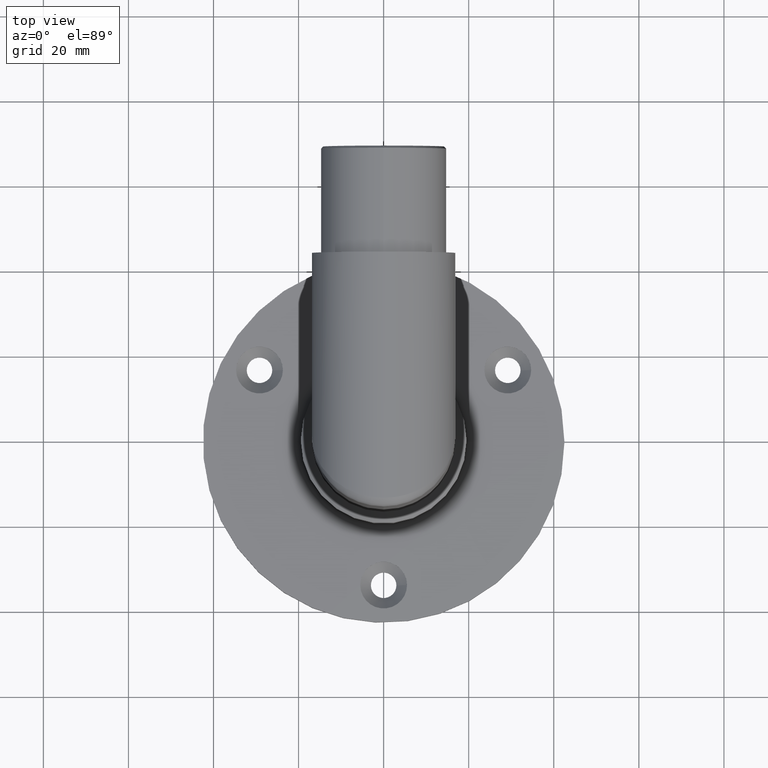
[diagram: clean part render]
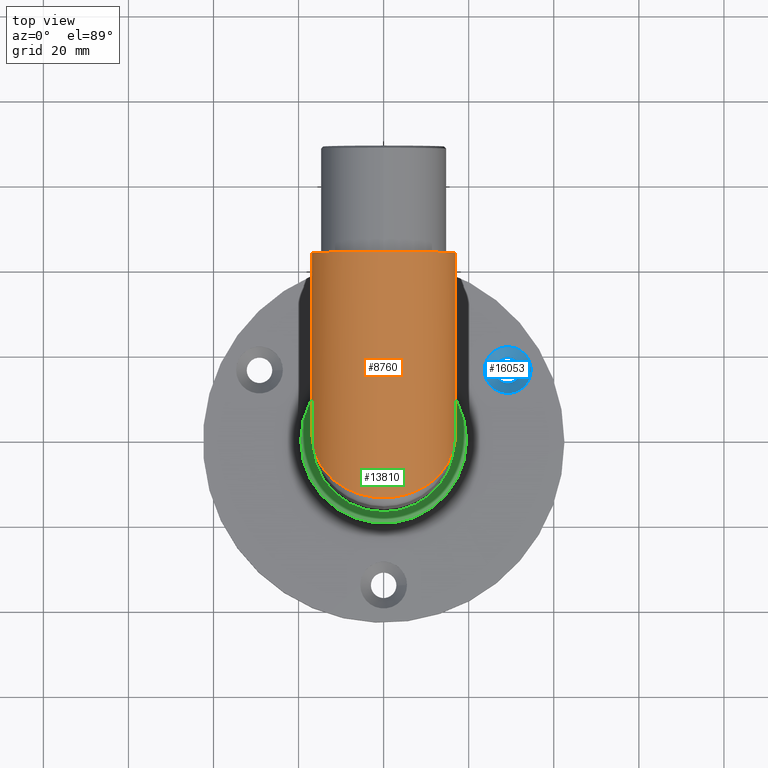
[diagram: same view with three faces highlighted in distinct colors, each labeled with its STEP entity id]
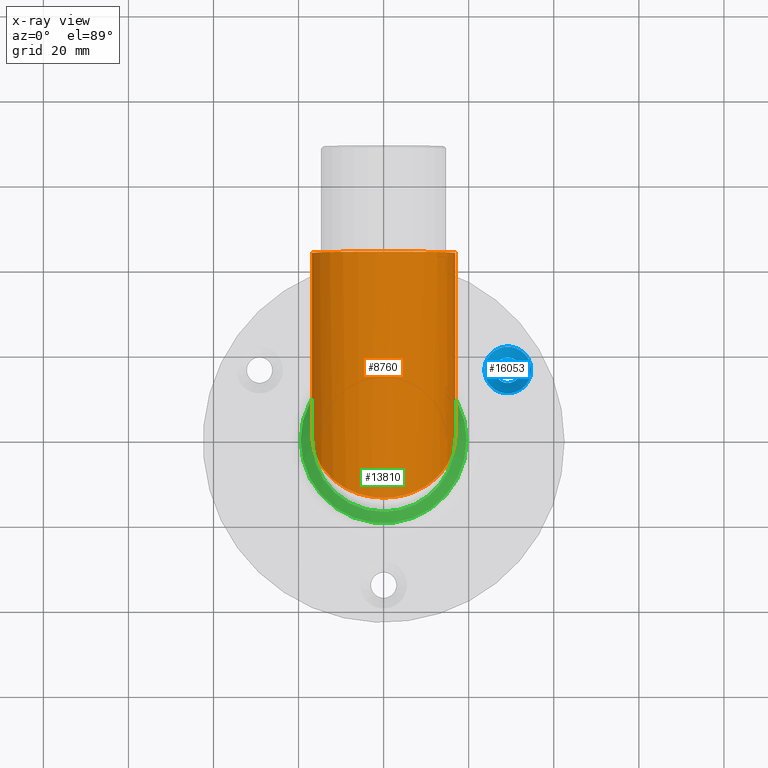
[diagram: x-ray of the same camera — body ghosted, the three highlighted faces saturated]
A machine part, top view with three faces highlighted in distinct colors.
The next image is the same camera in x-ray (body ghosted, the three faces saturated) — at least one of them is partly hidden behind the body in this view.
Their STEP definitions:

[orange] entity #8760 — the highlighted cylindrical surface (bore or boss wall) has radius 16.85 mm, axis along (0, 1, 0).
#39 = ORIENTED_EDGE ( 'NONE', *, *, #3743, .F. ) ;
#1211 = CARTESIAN_POINT ( 'NONE',  ( -16.85000000000000497, -4.252586010039184962E-15, 84.00000000000001421 ) ) ;
#1859 = AXIS2_PLACEMENT_3D ( 'NONE', #14311, #2166, #12989 ) ;
#1869 = CARTESIAN_POINT ( 'NONE',  ( -16.84999999999998721, 37.69999999999998863, 50.30000000000000426 ) ) ;
#2056 = VERTEX_POINT ( 'NONE', #13211 ) ;
#2166 = DIRECTION ( 'NONE',  ( 0.000000000000000000, 1.000000000000000000, 0.000000000000000000 ) ) ;
#2971 = ORIENTED_EDGE ( 'NONE', *, *, #6505, .T. ) ;
#3015 = FACE_OUTER_BOUND ( 'NONE', #17259, .T. ) ;
#3100 = VERTEX_POINT ( 'NONE', #1211 ) ;
#3196 = EDGE_LOOP ( 'NONE', ( #5539, #2971 ) ) ;
#3743 = EDGE_CURVE ( 'NONE', #12741, #12741, #6167, .T. ) ;
#5167 = AXIS2_PLACEMENT_3D ( 'NONE', #12464, #15082, #16713 ) ;
#5539 = ORIENTED_EDGE ( 'NONE', *, *, #12925, .T. ) ;
#6167 = CIRCLE ( 'NONE', #5167, 16.85000000000000142 ) ;
#6326 = CARTESIAN_POINT ( 'NONE',  ( 16.85000000000000142, -29.70000000000000995, 117.7000000000000171 ) ) ;
#6505 = EDGE_CURVE ( 'NONE', #3100, #2056, #12090, .T. ) ;
#7368 = CARTESIAN_POINT ( 'NONE',  ( -16.85000000000000497, -4.252586010039184962E-15, 84.00000000000001421 ) ) ;
#7703 = CARTESIAN_POINT ( 'NONE',  ( 16.85000000000000497, -8.967425371922087501E-16, 84.00000000000001421 ) ) ;
#8760 = ADVANCED_FACE ( 'NONE', ( #15032, #3015 ), #9679, .T. ) ;
#9132 = CARTESIAN_POINT ( 'NONE',  ( -16.85000000000000497, -4.252586010039184962E-15, 84.00000000000001421 ) ) ;
#9679 = CYLINDRICAL_SURFACE ( 'NONE', #1859, 16.85000000000000497 ) ;
#9821 = CARTESIAN_POINT ( 'NONE',  ( 16.85000000000000497, -8.967425371922087501E-16, 84.00000000000001421 ) ) ;
#12090 =( BOUNDED_CURVE ( )  B_SPLINE_CURVE ( 3, ( #9132, #17157, #6326, #7703 ),
 .UNSPECIFIED., .F., .F. ) 
 B_SPLINE_CURVE_WITH_KNOTS ( ( 4, 4 ),
 ( 4.712388980384689674, 7.853981633974482790 ),
 .UNSPECIFIED. ) 
 CURVE ( )  GEOMETRIC_REPRESENTATION_ITEM ( )  RATIONAL_B_SPLINE_CURVE ( ( 1.000000000000000000, 0.3333333333333333703, 0.3333333333333333703, 1.000000000000000000 ) ) 
 REPRESENTATION_ITEM ( '' )  );
#12453 = CARTESIAN_POINT ( 'NONE',  ( 16.85000000000000142, 42.99999999999998579, 84.00000000000000000 ) ) ;
#12464 = CARTESIAN_POINT ( 'NONE',  ( 0.000000000000000000, 42.99999999999998579, 84.00000000000000000 ) ) ;
#12741 = VERTEX_POINT ( 'NONE', #12453 ) ;
#12925 = EDGE_CURVE ( 'NONE', #2056, #3100, #14910, .T. ) ;
#12989 = DIRECTION ( 'NONE',  ( 0.000000000000000000, 0.000000000000000000, 1.000000000000000000 ) ) ;
#13211 = CARTESIAN_POINT ( 'NONE',  ( 16.85000000000000497, -8.967425371922087501E-16, 84.00000000000001421 ) ) ;
#14311 = CARTESIAN_POINT ( 'NONE',  ( 0.000000000000000000, -37.17000000000003013, 84.00000000000000000 ) ) ;
#14910 =( BOUNDED_CURVE ( )  B_SPLINE_CURVE ( 3, ( #9821, #16821, #1869, #7368 ),
 .UNSPECIFIED., .F., .T. ) 
 B_SPLINE_CURVE_WITH_KNOTS ( ( 4, 4 ),
 ( 1.570796326794896780, 4.712388980384689674 ),
 .UNSPECIFIED. ) 
 CURVE ( )  GEOMETRIC_REPRESENTATION_ITEM ( )  RATIONAL_B_SPLINE_CURVE ( ( 1.000000000000000000, 0.3333333333333333703, 0.3333333333333333703, 1.000000000000000000 ) ) 
 REPRESENTATION_ITEM ( '' )  );
#15032 = FACE_OUTER_BOUND ( 'NONE', #3196, .T. ) ;
#15082 = DIRECTION ( 'NONE',  ( 0.000000000000000000, 1.000000000000000000, -1.608122649676636601E-16 ) ) ;
#16713 = DIRECTION ( 'NONE',  ( 1.000000000000000000, 0.000000000000000000, 0.000000000000000000 ) ) ;
#16821 = CARTESIAN_POINT ( 'NONE',  ( 16.84999999999998721, 37.69999999999998863, 50.30000000000000426 ) ) ;
#17157 = CARTESIAN_POINT ( 'NONE',  ( -16.85000000000001208, -29.70000000000000284, 117.7000000000000171 ) ) ;
#17259 = EDGE_LOOP ( 'NONE', ( #39 ) ) ;

[blue] entity #16053 — the highlighted conical surface has half-angle 45 deg.
#338 = EDGE_LOOP ( 'NONE', ( #11140 ) ) ;
#2384 = EDGE_CURVE ( 'NONE', #12534, #12534, #12171, .T. ) ;
#4345 = CARTESIAN_POINT ( 'NONE',  ( 32.18505610753550172, 16.85000000000014353, 1.500000000000003997 ) ) ;
#5273 = CONICAL_SURFACE ( 'NONE', #7648, 5.499999999999994671, 0.7853981633974482790 ) ;
#6659 = DIRECTION ( 'NONE',  ( -0.000000000000000000, -0.000000000000000000, 1.000000000000000000 ) ) ;
#6946 = DIRECTION ( 'NONE',  ( 1.000000000000000000, 0.000000000000000000, 0.000000000000000000 ) ) ;
#7648 = AXIS2_PLACEMENT_3D ( 'NONE', #10671, #10902, #17605 ) ;
#8208 = EDGE_CURVE ( 'NONE', #16372, #16372, #14333, .T. ) ;
#8502 = CARTESIAN_POINT ( 'NONE',  ( 29.18505610753550528, 16.85000000000014353, 1.500000000000003997 ) ) ;
#8519 = DIRECTION ( 'NONE',  ( -0.000000000000000000, -0.000000000000000000, 1.000000000000000000 ) ) ;
#9906 = ORIENTED_EDGE ( 'NONE', *, *, #8208, .F. ) ;
#10671 = CARTESIAN_POINT ( 'NONE',  ( 29.18505610753550528, 16.85000000000014353, 3.999999999999999112 ) ) ;
#10902 = DIRECTION ( 'NONE',  ( -0.000000000000000000, -0.000000000000000000, 1.000000000000000000 ) ) ;
#11140 = ORIENTED_EDGE ( 'NONE', *, *, #2384, .T. ) ;
#11179 = DIRECTION ( 'NONE',  ( 1.000000000000000000, 0.000000000000000000, 0.000000000000000000 ) ) ;
#11513 = FACE_OUTER_BOUND ( 'NONE', #338, .T. ) ;
#11630 = AXIS2_PLACEMENT_3D ( 'NONE', #8502, #6659, #6946 ) ;
#12165 = AXIS2_PLACEMENT_3D ( 'NONE', #13841, #8519, #11179 ) ;
#12171 = CIRCLE ( 'NONE', #12165, 5.499999999999994671 ) ;
#12534 = VERTEX_POINT ( 'NONE', #15130 ) ;
#13841 = CARTESIAN_POINT ( 'NONE',  ( 29.18505610753550528, 16.85000000000014353, 3.999999999999999112 ) ) ;
#14333 = CIRCLE ( 'NONE', #11630, 2.999999999999999112 ) ;
#15130 = CARTESIAN_POINT ( 'NONE',  ( 34.68505610753550172, 16.85000000000014353, 3.999999999999999112 ) ) ;
#16053 = ADVANCED_FACE ( 'NONE', ( #17497, #11513 ), #5273, .F. ) ;
#16372 = VERTEX_POINT ( 'NONE', #4345 ) ;
#16804 = EDGE_LOOP ( 'NONE', ( #9906 ) ) ;
#17497 = FACE_BOUND ( 'NONE', #16804, .T. ) ;
#17605 = DIRECTION ( 'NONE',  ( 1.000000000000000000, 0.000000000000000000, 0.000000000000000000 ) ) ;

[green] entity #13810 — the highlighted conical surface has half-angle 45 deg.
#334 = CARTESIAN_POINT ( 'NONE',  ( 0.000000000000000000, -16.85000000000000142, 26.65000000000008029 ) ) ;
#629 = DIRECTION ( 'NONE',  ( 0.000000000000000000, 0.000000000000000000, 1.000000000000000000 ) ) ;
#940 = CIRCLE ( 'NONE', #10370, 19.50000000000000000 ) ;
#2175 = AXIS2_PLACEMENT_3D ( 'NONE', #14152, #14343, #7393 ) ;
#4285 = CIRCLE ( 'NONE', #2175, 16.85000000000000142 ) ;
#4571 = EDGE_LOOP ( 'NONE', ( #12378 ) ) ;
#5580 = CARTESIAN_POINT ( 'NONE',  ( 0.000000000000000000, -3.245314017740587528E-16, 26.65000000000008384 ) ) ;
#7011 = FACE_OUTER_BOUND ( 'NONE', #4571, .T. ) ;
#7393 = DIRECTION ( 'NONE',  ( 0.000000000000000000, -1.000000000000000000, -2.059018962583747019E-16 ) ) ;
#7895 = CONICAL_SURFACE ( 'NONE', #13672, 16.85000000000000142, 0.7853981633974423948 ) ;
#8729 = CARTESIAN_POINT ( 'NONE',  ( 0.000000000000000000, 0.000000000000000000, 24.00000000000000000 ) ) ;
#9057 = EDGE_CURVE ( 'NONE', #9532, #9532, #940, .T. ) ;
#9507 = EDGE_CURVE ( 'NONE', #17484, #17484, #4285, .T. ) ;
#9532 = VERTEX_POINT ( 'NONE', #12562 ) ;
#10243 = EDGE_LOOP ( 'NONE', ( #15589 ) ) ;
#10370 = AXIS2_PLACEMENT_3D ( 'NONE', #8729, #629, #14290 ) ;
#12378 = ORIENTED_EDGE ( 'NONE', *, *, #9057, .T. ) ;
#12562 = CARTESIAN_POINT ( 'NONE',  ( 19.50000000000000000, 0.000000000000000000, 24.00000000000000000 ) ) ;
#12598 = FACE_BOUND ( 'NONE', #10243, .T. ) ;
#13672 = AXIS2_PLACEMENT_3D ( 'NONE', #5580, #13886, #16706 ) ;
#13810 = ADVANCED_FACE ( 'NONE', ( #7011, #12598 ), #7895, .T. ) ;
#13886 = DIRECTION ( 'NONE',  ( 0.000000000000000000, 1.224646799147353207E-16, -1.000000000000000000 ) ) ;
#14152 = CARTESIAN_POINT ( 'NONE',  ( 0.000000000000000000, -3.245314017740587528E-16, 26.65000000000008384 ) ) ;
#14290 = DIRECTION ( 'NONE',  ( 1.000000000000000000, 0.000000000000000000, 0.000000000000000000 ) ) ;
#14343 = DIRECTION ( 'NONE',  ( -0.000000000000000000, -1.224646799147353207E-16, 1.000000000000000000 ) ) ;
#15589 = ORIENTED_EDGE ( 'NONE', *, *, #9507, .F. ) ;
#16706 = DIRECTION ( 'NONE',  ( 0.000000000000000000, 1.000000000000000000, 2.059018962583747019E-16 ) ) ;
#17484 = VERTEX_POINT ( 'NONE', #334 ) ;